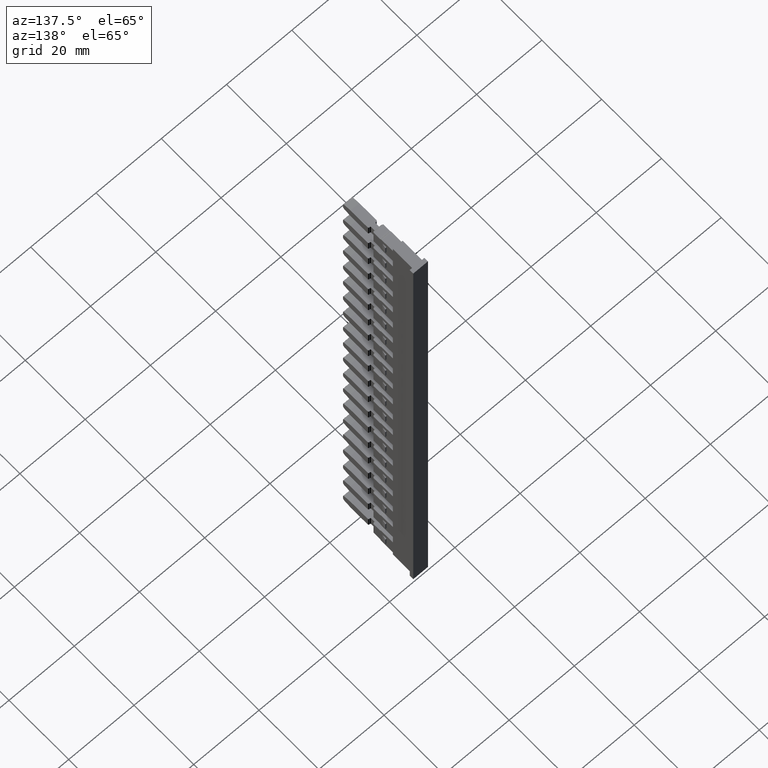
[diagram: clean part render]
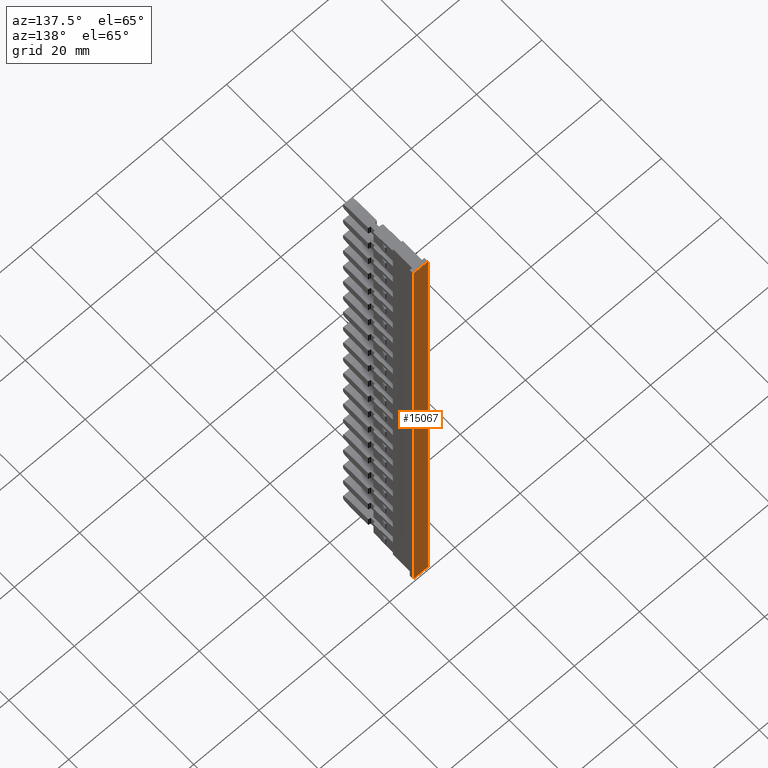
[diagram: same view with one face highlighted and labeled with its STEP entity id]
A machine part, auxiliary view. The second image highlights one B-rep face of the part: STEP entity #15067.
In plain terms, the highlighted planar face has unit normal (0, -1, -0).
Its self-contained STEP definition (entity closure, byte-faithful):
#1734 = AXIS2_PLACEMENT_3D ( 'NONE', #22759, #22770, #22778 ) ;
#2211 = VECTOR ( 'NONE', #21551, 1000.000000000000000 ) ;
#2281 = VECTOR ( 'NONE', #21727, 1000.000000000000000 ) ;
#3349 = CARTESIAN_POINT ( 'NONE',  ( 112.9952529172783200, 260.3101602476006100, 9.639822679385984500 ) ) ;
#3358 = CARTESIAN_POINT ( 'NONE',  ( 112.9952529172782500, 260.3101602476015700, 173.0398226793859900 ) ) ;
#3378 = CARTESIAN_POINT ( 'NONE',  ( 108.4952529172782200, 260.3101602476015700, 173.0398226793859900 ) ) ;
#3404 = CARTESIAN_POINT ( 'NONE',  ( 108.4952529172783100, 260.3101602476004900, 9.639822679385984500 ) ) ;
#6017 = VECTOR ( 'NONE', #14175, 1000.000000000000000 ) ;
#6043 = VECTOR ( 'NONE', #19460, 1000.000000000000000 ) ;
#6817 = EDGE_CURVE ( 'NONE', #15421, #15459, #14185, .T. ) ;
#6849 = EDGE_CURVE ( 'NONE', #15449, #15425, #19423, .T. ) ;
#9933 = EDGE_LOOP ( 'NONE', ( #18238, #18261, #18266, #18288 ) ) ;
#14175 = DIRECTION ( 'NONE',  ( 1.000000000000000000, -0.0000000000000000000, 7.193572994224081300E-015 ) ) ;
#14185 = LINE ( 'NONE', #14206, #6017 ) ;
#14206 = CARTESIAN_POINT ( 'NONE',  ( 112.2452529172785900, 260.3101602476015200, 173.0398226793859900 ) ) ;
#15067 = ADVANCED_FACE ( 'NONE', ( #22745 ), #22753, .F. ) ;
#15421 = VERTEX_POINT ( 'NONE', #3378 ) ;
#15425 = VERTEX_POINT ( 'NONE', #3404 ) ;
#15449 = VERTEX_POINT ( 'NONE', #3349 ) ;
#15459 = VERTEX_POINT ( 'NONE', #3358 ) ;
#16137 = EDGE_CURVE ( 'NONE', #15449, #15459, #21539, .T. ) ;
#16196 = EDGE_CURVE ( 'NONE', #15421, #15425, #21745, .T. ) ;
#18238 = ORIENTED_EDGE ( 'NONE', *, *, #6817, .T. ) ;
#18261 = ORIENTED_EDGE ( 'NONE', *, *, #16137, .F. ) ;
#18266 = ORIENTED_EDGE ( 'NONE', *, *, #6849, .T. ) ;
#18288 = ORIENTED_EDGE ( 'NONE', *, *, #16196, .F. ) ;
#19423 = LINE ( 'NONE', #19424, #6043 ) ;
#19424 = CARTESIAN_POINT ( 'NONE',  ( 112.2452529172788300, 260.3101602476005500, 9.639822679386011100 ) ) ;
#19460 = DIRECTION ( 'NONE',  ( -1.000000000000000000, -0.0000000000000000000, -7.193572994224081300E-015 ) ) ;
#21539 = LINE ( 'NONE', #21564, #2211 ) ;
#21551 = DIRECTION ( 'NONE',  ( 7.847720069483336500E-029, -2.968510761029624900E-015, 1.000000000000000000 ) ) ;
#21564 = CARTESIAN_POINT ( 'NONE',  ( 112.9952529172783200, 260.3101602476014600, 228.6398226793851100 ) ) ;
#21727 = DIRECTION ( 'NONE',  ( -7.847720069483336500E-029, 2.968510761029624900E-015, -1.000000000000000000 ) ) ;
#21737 = CARTESIAN_POINT ( 'NONE',  ( 108.4952529172782200, 260.3101602476013500, 228.6398226793851100 ) ) ;
#21745 = LINE ( 'NONE', #21737, #2281 ) ;
#22745 = FACE_OUTER_BOUND ( 'NONE', #9933, .T. ) ;
#22753 = PLANE ( 'NONE',  #1734 ) ;
#22759 = CARTESIAN_POINT ( 'NONE',  ( 112.2452529172779900, 260.3101602476014600, 228.6398226793851100 ) ) ;
#22770 = DIRECTION ( 'NONE',  ( 2.643655590711540000E-014, -1.000000000000000000, -2.968510761029624900E-015 ) ) ;
#22778 = DIRECTION ( 'NONE',  ( 1.000000000000000000, 2.643655590711540000E-014, 0.0000000000000000000 ) ) ;